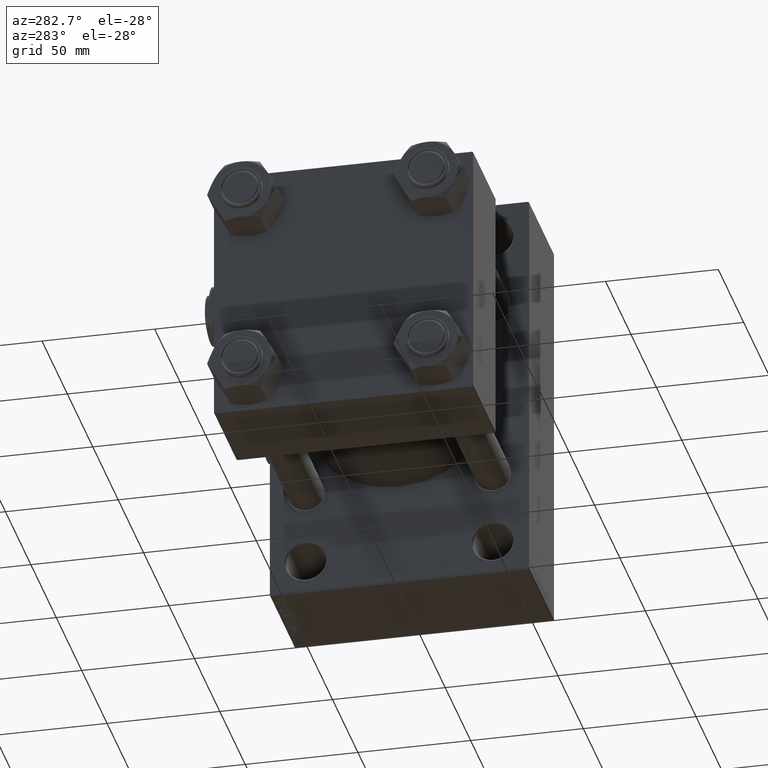
[diagram: clean part render]
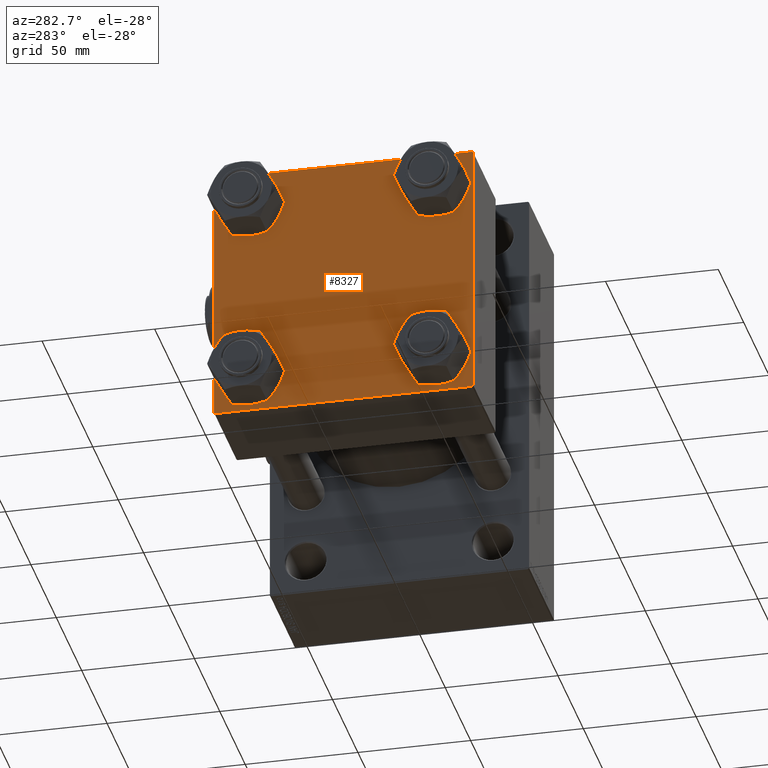
[diagram: same view with one face highlighted and labeled with its STEP entity id]
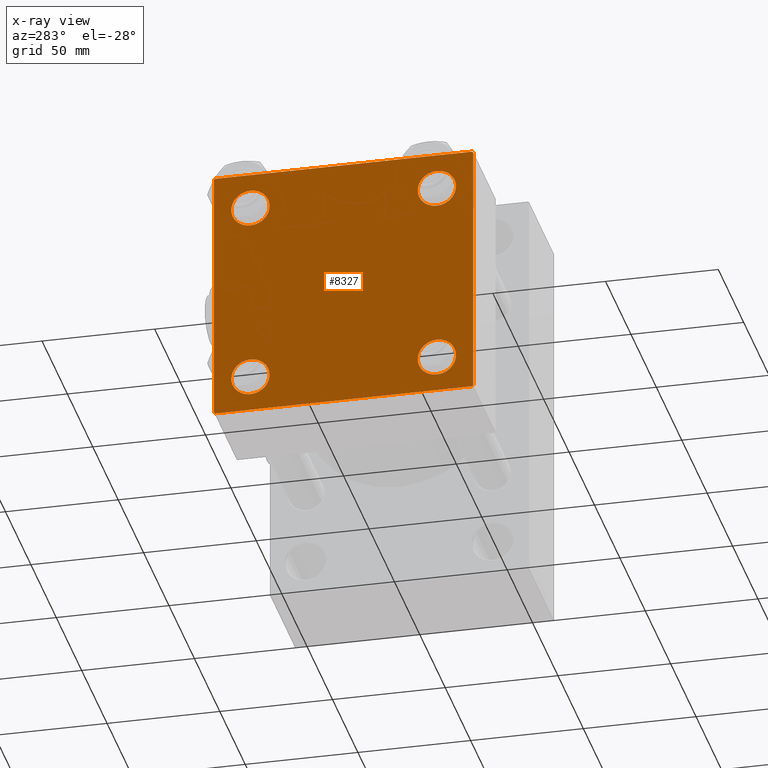
[diagram: x-ray of the same camera — body ghosted, the highlighted face saturated]
A machine part, auxiliary view. The second image highlights one B-rep face of the part: STEP entity #8327.
The next image is the same camera in x-ray: the body ghosted, the highlighted face saturated — about 0% of this face is hidden behind the body in this view.
In plain terms, the highlighted planar face has unit normal (-1, 0, 0).
Its self-contained STEP definition (entity closure, byte-faithful):
#22 = CIRCLE ( 'NONE', #11238, 8.499999999999992895 ) ;
#525 = CARTESIAN_POINT ( 'NONE',  ( 0.000000000000000000, -57.50000000000000711, 57.00000000000000711 ) ) ;
#1848 = VERTEX_POINT ( 'NONE', #47929 ) ;
#2191 = CARTESIAN_POINT ( 'NONE',  ( 0.000000000000000000, 57.49999999999999289, 57.50000000000000711 ) ) ;
#2483 = LINE ( 'NONE', #5987, #13831 ) ;
#2583 = CARTESIAN_POINT ( 'NONE',  ( 0.000000000000000000, 41.34999999999999432, -41.35000000000000142 ) ) ;
#2688 = LINE ( 'NONE', #2191, #49018 ) ;
#2781 = AXIS2_PLACEMENT_3D ( 'NONE', #48284, #22085, #32919 ) ;
#3863 = EDGE_LOOP ( 'NONE', ( #43969, #18040 ) ) ;
#4167 = ORIENTED_EDGE ( 'NONE', *, *, #27833, .F. ) ;
#4582 = ORIENTED_EDGE ( 'NONE', *, *, #37176, .T. ) ;
#4771 = EDGE_CURVE ( 'NONE', #10060, #28928, #17269, .T. ) ;
#5505 = AXIS2_PLACEMENT_3D ( 'NONE', #21145, #28465, #9062 ) ;
#5518 = CARTESIAN_POINT ( 'NONE',  ( 0.000000000000000000, 41.34999999999999432, -32.85000000000000853 ) ) ;
#5987 = CARTESIAN_POINT ( 'NONE',  ( 0.000000000000000000, 57.49999999999999289, -57.49999999999999289 ) ) ;
#6238 = VERTEX_POINT ( 'NONE', #19067 ) ;
#6311 = ORIENTED_EDGE ( 'NONE', *, *, #49219, .T. ) ;
#6337 = VECTOR ( 'NONE', #10445, 1000.000000000000000 ) ;
#6441 = VECTOR ( 'NONE', #49177, 1000.000000000000114 ) ;
#6498 = EDGE_CURVE ( 'NONE', #14366, #30477, #7992, .T. ) ;
#6658 = DIRECTION ( 'NONE',  ( 0.000000000000000000, 0.000000000000000000, 1.000000000000000000 ) ) ;
#7992 = CIRCLE ( 'NONE', #45812, 8.499999999999992895 ) ;
#8289 = VERTEX_POINT ( 'NONE', #525 ) ;
#8327 = ADVANCED_FACE ( 'NONE', ( #28220, #9787, #48341, #20645, #25184 ), #36526, .T. ) ;
#8449 = DIRECTION ( 'NONE',  ( 1.000000000000000000, -0.000000000000000000, 0.000000000000000000 ) ) ;
#8606 = LINE ( 'NONE', #23980, #15347 ) ;
#9062 = DIRECTION ( 'NONE',  ( -0.000000000000000000, 0.000000000000000000, 1.000000000000000000 ) ) ;
#9750 = DIRECTION ( 'NONE',  ( 0.000000000000000000, -1.000000000000000000, -1.206764157201257045E-16 ) ) ;
#9787 = FACE_BOUND ( 'NONE', #48488, .T. ) ;
#9921 = EDGE_CURVE ( 'NONE', #29032, #16998, #2688, .T. ) ;
#10060 = VERTEX_POINT ( 'NONE', #27320 ) ;
#10445 = DIRECTION ( 'NONE',  ( 0.000000000000000000, -1.000000000000000000, -1.206764157201257045E-16 ) ) ;
#10804 = CARTESIAN_POINT ( 'NONE',  ( 0.000000000000000000, 41.34999999999999432, 41.35000000000000142 ) ) ;
#11238 = AXIS2_PLACEMENT_3D ( 'NONE', #46942, #12660, #23274 ) ;
#11454 = DIRECTION ( 'NONE',  ( 1.000000000000000000, -0.000000000000000000, 0.000000000000000000 ) ) ;
#11585 = AXIS2_PLACEMENT_3D ( 'NONE', #2583, #18411, #26239 ) ;
#11733 = CARTESIAN_POINT ( 'NONE',  ( 0.000000000000000000, 41.34999999999999432, 32.85000000000000853 ) ) ;
#12660 = DIRECTION ( 'NONE',  ( 1.000000000000000000, -0.000000000000000000, 0.000000000000000000 ) ) ;
#13116 = CIRCLE ( 'NONE', #42083, 8.499999999999992895 ) ;
#13831 = VECTOR ( 'NONE', #9750, 1000.000000000000000 ) ;
#13972 = EDGE_CURVE ( 'NONE', #16998, #1848, #8606, .T. ) ;
#14366 = VERTEX_POINT ( 'NONE', #29191 ) ;
#15347 = VECTOR ( 'NONE', #31528, 1000.000000000000114 ) ;
#15837 = CARTESIAN_POINT ( 'NONE',  ( 0.000000000000000000, -41.34999999999998721, 49.85000000000000853 ) ) ;
#16337 = EDGE_CURVE ( 'NONE', #1848, #6238, #2483, .T. ) ;
#16998 = VERTEX_POINT ( 'NONE', #22413 ) ;
#17269 = LINE ( 'NONE', #28863, #6337 ) ;
#17518 = DIRECTION ( 'NONE',  ( 0.000000000000000000, 0.000000000000000000, -1.000000000000000000 ) ) ;
#18032 = CIRCLE ( 'NONE', #11585, 8.499999999999992895 ) ;
#18040 = ORIENTED_EDGE ( 'NONE', *, *, #44775, .T. ) ;
#18411 = DIRECTION ( 'NONE',  ( 1.000000000000000000, -0.000000000000000000, 0.000000000000000000 ) ) ;
#18645 = CIRCLE ( 'NONE', #45198, 8.499999999999992895 ) ;
#18647 = EDGE_CURVE ( 'NONE', #43702, #47127, #13116, .T. ) ;
#19067 = CARTESIAN_POINT ( 'NONE',  ( 0.000000000000000000, -57.00000000000000711, -57.50000000000000711 ) ) ;
#19278 = DIRECTION ( 'NONE',  ( 0.000000000000000000, 0.000000000000000000, 1.000000000000000000 ) ) ;
#19280 = CARTESIAN_POINT ( 'NONE',  ( -0.000000000000000000, -57.25000000000081712, 57.24999999999922551 ) ) ;
#19336 = ORIENTED_EDGE ( 'NONE', *, *, #23925, .T. ) ;
#19846 = EDGE_LOOP ( 'NONE', ( #19336, #25410 ) ) ;
#20645 = FACE_BOUND ( 'NONE', #40828, .T. ) ;
#21145 = CARTESIAN_POINT ( 'NONE',  ( 0.000000000000000000, 0.000000000000000000, 0.000000000000000000 ) ) ;
#21248 = CIRCLE ( 'NONE', #34928, 8.499999999999992895 ) ;
#21355 = CARTESIAN_POINT ( 'NONE',  ( 0.000000000000000000, -41.34999999999998721, 32.85000000000001563 ) ) ;
#21643 = ORIENTED_EDGE ( 'NONE', *, *, #29578, .T. ) ;
#21803 = AXIS2_PLACEMENT_3D ( 'NONE', #10804, #28968, #44330 ) ;
#22085 = DIRECTION ( 'NONE',  ( 1.000000000000000000, -0.000000000000000000, 0.000000000000000000 ) ) ;
#22413 = CARTESIAN_POINT ( 'NONE',  ( 0.000000000000000000, 57.49999999999999289, -57.00000000000000711 ) ) ;
#23274 = DIRECTION ( 'NONE',  ( 0.000000000000000000, 0.000000000000000000, 1.000000000000000000 ) ) ;
#23326 = LINE ( 'NONE', #19280, #28776 ) ;
#23925 = EDGE_CURVE ( 'NONE', #30477, #14366, #18032, .T. ) ;
#23980 = CARTESIAN_POINT ( 'NONE',  ( 0.000000000000000000, 57.25000000000081712, -57.24999999999922551 ) ) ;
#24412 = ORIENTED_EDGE ( 'NONE', *, *, #45047, .T. ) ;
#24562 = EDGE_CURVE ( 'NONE', #40582, #48789, #36544, .T. ) ;
#24703 = EDGE_CURVE ( 'NONE', #47924, #33516, #21248, .T. ) ;
#25108 = DIRECTION ( 'NONE',  ( 1.000000000000000000, -0.000000000000000000, 0.000000000000000000 ) ) ;
#25184 = FACE_OUTER_BOUND ( 'NONE', #46435, .T. ) ;
#25410 = ORIENTED_EDGE ( 'NONE', *, *, #6498, .T. ) ;
#26239 = DIRECTION ( 'NONE',  ( 0.000000000000000000, 0.000000000000000000, 1.000000000000000000 ) ) ;
#26661 = CARTESIAN_POINT ( 'NONE',  ( 0.000000000000000000, -41.34999999999998721, -32.85000000000001563 ) ) ;
#27043 = LINE ( 'NONE', #42175, #29481 ) ;
#27320 = CARTESIAN_POINT ( 'NONE',  ( 0.000000000000000000, 57.00000000000000711, 57.50000000000000711 ) ) ;
#27833 = EDGE_CURVE ( 'NONE', #8289, #43178, #49095, .T. ) ;
#28220 = FACE_BOUND ( 'NONE', #3863, .T. ) ;
#28465 = DIRECTION ( 'NONE',  ( -1.000000000000000000, 0.000000000000000000, -0.000000000000000000 ) ) ;
#28776 = VECTOR ( 'NONE', #30387, 1000.000000000000114 ) ;
#28863 = CARTESIAN_POINT ( 'NONE',  ( 0.000000000000000000, 57.49999999999999289, 57.50000000000000711 ) ) ;
#28928 = VERTEX_POINT ( 'NONE', #46545 ) ;
#28968 = DIRECTION ( 'NONE',  ( 1.000000000000000000, -0.000000000000000000, 0.000000000000000000 ) ) ;
#29032 = VERTEX_POINT ( 'NONE', #43538 ) ;
#29191 = CARTESIAN_POINT ( 'NONE',  ( 0.000000000000000000, 41.34999999999999432, -49.85000000000000142 ) ) ;
#29481 = VECTOR ( 'NONE', #31062, 1000.000000000000114 ) ;
#29578 = EDGE_CURVE ( 'NONE', #6238, #43178, #27043, .T. ) ;
#29889 = DIRECTION ( 'NONE',  ( 0.000000000000000000, 0.000000000000000000, 1.000000000000000000 ) ) ;
#30277 = ORIENTED_EDGE ( 'NONE', *, *, #9921, .T. ) ;
#30387 = DIRECTION ( 'NONE',  ( -0.000000000000000000, 0.7071067811865376918, 0.7071067811865573427 ) ) ;
#30477 = VERTEX_POINT ( 'NONE', #5518 ) ;
#31062 = DIRECTION ( 'NONE',  ( 0.000000000000000000, -0.7071067811865474617, 0.7071067811865474617 ) ) ;
#31528 = DIRECTION ( 'NONE',  ( -0.000000000000000000, -0.7071067811865376918, -0.7071067811865573427 ) ) ;
#32919 = DIRECTION ( 'NONE',  ( 0.000000000000000000, 0.000000000000000000, 1.000000000000000000 ) ) ;
#33149 = CARTESIAN_POINT ( 'NONE',  ( 0.000000000000000000, 41.34999999999999432, 41.35000000000000142 ) ) ;
#33516 = VERTEX_POINT ( 'NONE', #21355 ) ;
#33978 = DIRECTION ( 'NONE',  ( 0.000000000000000000, 0.000000000000000000, -1.000000000000000000 ) ) ;
#34928 = AXIS2_PLACEMENT_3D ( 'NONE', #42224, #8449, #19278 ) ;
#35245 = LINE ( 'NONE', #42123, #6441 ) ;
#35778 = ORIENTED_EDGE ( 'NONE', *, *, #18647, .T. ) ;
#36526 = PLANE ( 'NONE',  #5505 ) ;
#36544 = CIRCLE ( 'NONE', #2781, 8.499999999999992895 ) ;
#36650 = DIRECTION ( 'NONE',  ( 1.000000000000000000, -0.000000000000000000, 0.000000000000000000 ) ) ;
#36844 = CARTESIAN_POINT ( 'NONE',  ( 0.000000000000000000, 41.34999999999999432, 49.85000000000000142 ) ) ;
#37176 = EDGE_CURVE ( 'NONE', #8289, #28928, #23326, .T. ) ;
#37195 = DIRECTION ( 'NONE',  ( 0.000000000000000000, 0.000000000000000000, 1.000000000000000000 ) ) ;
#38714 = CIRCLE ( 'NONE', #21803, 8.499999999999992895 ) ;
#39255 = ORIENTED_EDGE ( 'NONE', *, *, #44046, .T. ) ;
#40582 = VERTEX_POINT ( 'NONE', #46871 ) ;
#40828 = EDGE_LOOP ( 'NONE', ( #35778, #39255 ) ) ;
#41183 = CARTESIAN_POINT ( 'NONE',  ( 0.000000000000000000, -41.34999999999998721, -41.35000000000000853 ) ) ;
#41475 = CARTESIAN_POINT ( 'NONE',  ( 0.000000000000000000, 41.34999999999999432, -41.35000000000000142 ) ) ;
#42083 = AXIS2_PLACEMENT_3D ( 'NONE', #33149, #25108, #37195 ) ;
#42123 = CARTESIAN_POINT ( 'NONE',  ( 0.000000000000000000, 57.24999999999922551, 57.25000000000081712 ) ) ;
#42175 = CARTESIAN_POINT ( 'NONE',  ( 0.000000000000000000, -57.25000000000000711, -57.25000000000000711 ) ) ;
#42224 = CARTESIAN_POINT ( 'NONE',  ( 0.000000000000000000, -41.34999999999998721, 41.35000000000000853 ) ) ;
#42752 = ORIENTED_EDGE ( 'NONE', *, *, #4771, .F. ) ;
#43084 = ORIENTED_EDGE ( 'NONE', *, *, #24562, .T. ) ;
#43178 = VERTEX_POINT ( 'NONE', #45710 ) ;
#43444 = ORIENTED_EDGE ( 'NONE', *, *, #16337, .T. ) ;
#43538 = CARTESIAN_POINT ( 'NONE',  ( 0.000000000000000000, 57.49999999999999289, 57.00000000000003553 ) ) ;
#43702 = VERTEX_POINT ( 'NONE', #36844 ) ;
#43905 = VECTOR ( 'NONE', #33978, 1000.000000000000000 ) ;
#43969 = ORIENTED_EDGE ( 'NONE', *, *, #24703, .T. ) ;
#44046 = EDGE_CURVE ( 'NONE', #47127, #43702, #38714, .T. ) ;
#44330 = DIRECTION ( 'NONE',  ( 0.000000000000000000, 0.000000000000000000, 1.000000000000000000 ) ) ;
#44775 = EDGE_CURVE ( 'NONE', #33516, #47924, #22, .T. ) ;
#45047 = EDGE_CURVE ( 'NONE', #10060, #29032, #35245, .T. ) ;
#45198 = AXIS2_PLACEMENT_3D ( 'NONE', #41183, #36650, #6658 ) ;
#45710 = CARTESIAN_POINT ( 'NONE',  ( 0.000000000000000000, -57.50000000000000711, -57.00000000000000711 ) ) ;
#45812 = AXIS2_PLACEMENT_3D ( 'NONE', #41475, #11454, #29889 ) ;
#46435 = EDGE_LOOP ( 'NONE', ( #30277, #48775, #43444, #21643, #4167, #4582, #42752, #24412 ) ) ;
#46545 = CARTESIAN_POINT ( 'NONE',  ( 0.000000000000000000, -57.00000000000003553, 57.49999999999999289 ) ) ;
#46871 = CARTESIAN_POINT ( 'NONE',  ( 0.000000000000000000, -41.34999999999998721, -49.85000000000000853 ) ) ;
#46942 = CARTESIAN_POINT ( 'NONE',  ( 0.000000000000000000, -41.34999999999998721, 41.35000000000000853 ) ) ;
#47127 = VERTEX_POINT ( 'NONE', #11733 ) ;
#47924 = VERTEX_POINT ( 'NONE', #15837 ) ;
#47929 = CARTESIAN_POINT ( 'NONE',  ( 0.000000000000000000, 57.00000000000002132, -57.49999999999999289 ) ) ;
#48284 = CARTESIAN_POINT ( 'NONE',  ( 0.000000000000000000, -41.34999999999998721, -41.35000000000000853 ) ) ;
#48341 = FACE_BOUND ( 'NONE', #19846, .T. ) ;
#48488 = EDGE_LOOP ( 'NONE', ( #6311, #43084 ) ) ;
#48775 = ORIENTED_EDGE ( 'NONE', *, *, #13972, .T. ) ;
#48789 = VERTEX_POINT ( 'NONE', #26661 ) ;
#48843 = CARTESIAN_POINT ( 'NONE',  ( 0.000000000000000000, -57.50000000000000711, 57.49999999999999289 ) ) ;
#49018 = VECTOR ( 'NONE', #17518, 1000.000000000000000 ) ;
#49095 = LINE ( 'NONE', #48843, #43905 ) ;
#49177 = DIRECTION ( 'NONE',  ( 0.000000000000000000, 0.7071067811865573427, -0.7071067811865376918 ) ) ;
#49219 = EDGE_CURVE ( 'NONE', #48789, #40582, #18645, .T. ) ;